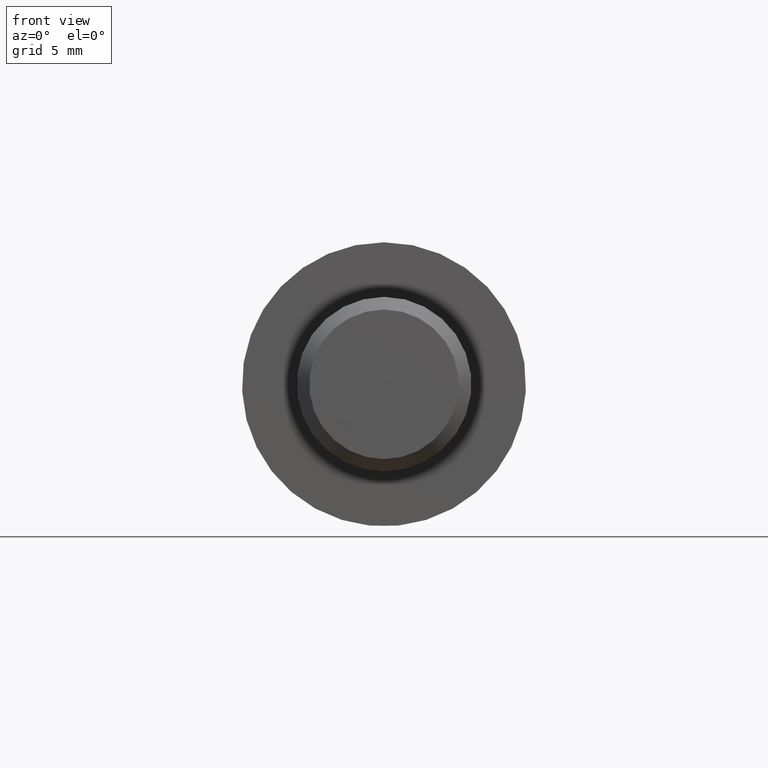
[diagram: clean part render]
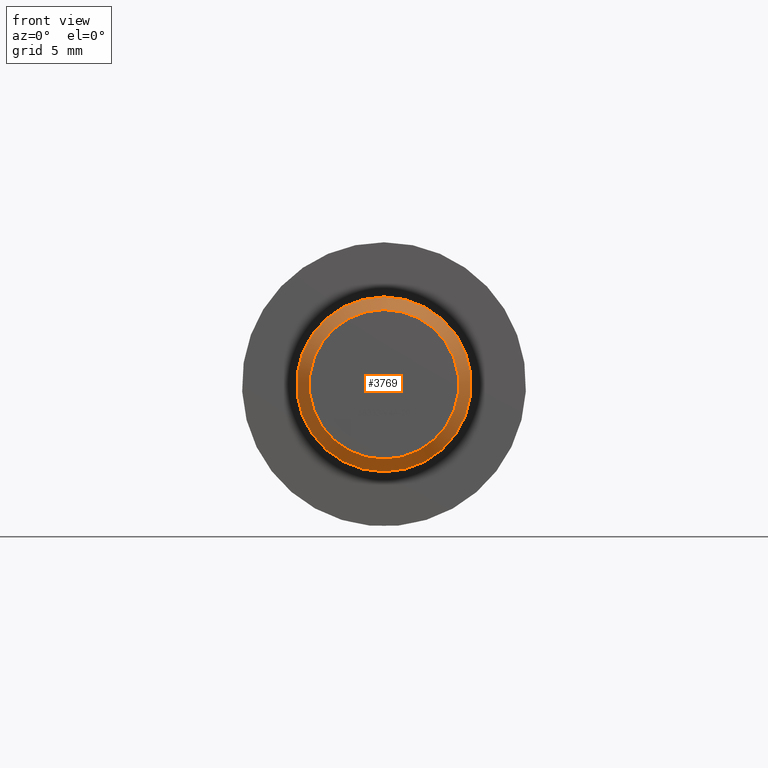
[diagram: same view with one face highlighted and labeled with its STEP entity id]
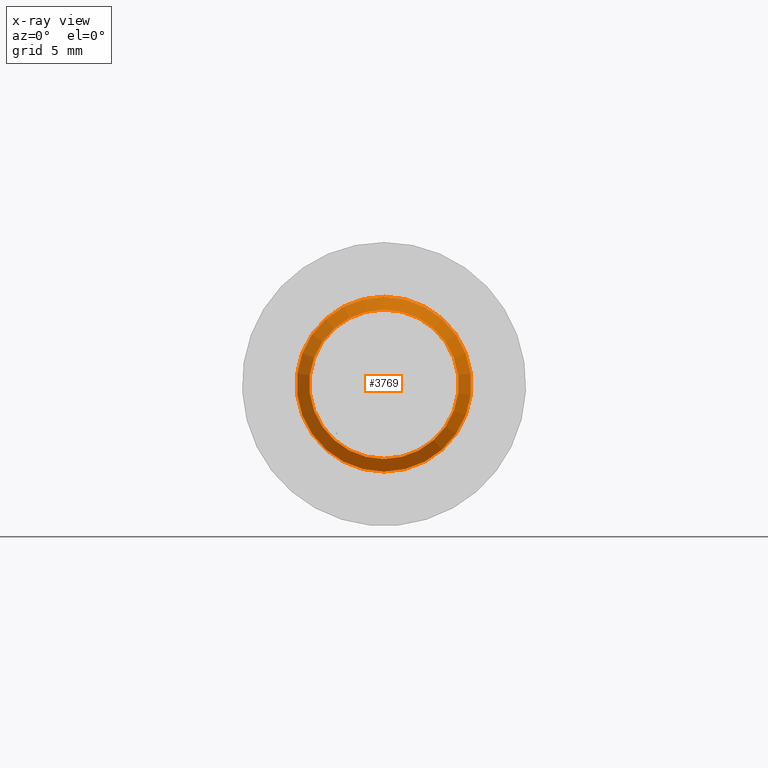
[diagram: x-ray of the same camera — body ghosted, the highlighted face saturated]
A machine part, front view. The second image highlights one B-rep face of the part: STEP entity #3769.
The next image is the same camera in x-ray: the body ghosted, the highlighted face saturated — about 0% of this face is hidden behind the body in this view.
In plain terms, the highlighted conical surface has half-angle 30 deg.
Its self-contained STEP definition (entity closure, byte-faithful):
#101 = FACE_BOUND ( 'NONE', #9966, .T. ) ;
#1142 = ORIENTED_EDGE ( 'NONE', *, *, #8881, .F. ) ;
#2593 = DIRECTION ( 'NONE',  ( 0.0000000000000000000, 0.0000000000000000000, -1.000000000000000000 ) ) ;
#3044 = VERTEX_POINT ( 'NONE', #8148 ) ;
#3125 = CIRCLE ( 'NONE', #3530, 3.422649730810373800 ) ;
#3530 = AXIS2_PLACEMENT_3D ( 'NONE', #5613, #11767, #7981 ) ;
#3591 = EDGE_LOOP ( 'NONE', ( #1142 ) ) ;
#3609 = AXIS2_PLACEMENT_3D ( 'NONE', #7294, #4977, #13612 ) ;
#3769 = ADVANCED_FACE ( 'NONE', ( #15611, #101 ), #7883, .T. ) ;
#3858 = AXIS2_PLACEMENT_3D ( 'NONE', #14947, #3965, #2593 ) ;
#3965 = DIRECTION ( 'NONE',  ( 0.0000000000000000000, 1.000000000000000000, 0.0000000000000000000 ) ) ;
#4456 = CARTESIAN_POINT ( 'NONE',  ( 0.0000000000000000000, -20.00000000000000000, -3.422649730810373800 ) ) ;
#4977 = DIRECTION ( 'NONE',  ( 0.0000000000000000000, 1.000000000000000000, 0.0000000000000000000 ) ) ;
#5613 = CARTESIAN_POINT ( 'NONE',  ( 0.0000000000000000000, -20.00000000000000000, 0.0000000000000000000 ) ) ;
#7294 = CARTESIAN_POINT ( 'NONE',  ( 0.0000000000000000000, -20.00000000000000000, 0.0000000000000000000 ) ) ;
#7883 = CONICAL_SURFACE ( 'NONE', #3609, 3.422649730810373800, 0.5235987755982972600 ) ;
#7981 = DIRECTION ( 'NONE',  ( 0.0000000000000000000, 0.0000000000000000000, -1.000000000000000000 ) ) ;
#8148 = CARTESIAN_POINT ( 'NONE',  ( 0.0000000000000000000, -18.99999999999999600, -4.000000000000000000 ) ) ;
#8881 = EDGE_CURVE ( 'NONE', #3044, #3044, #15550, .T. ) ;
#9966 = EDGE_LOOP ( 'NONE', ( #12359 ) ) ;
#11122 = EDGE_CURVE ( 'NONE', #14459, #14459, #3125, .T. ) ;
#11767 = DIRECTION ( 'NONE',  ( 0.0000000000000000000, -1.000000000000000000, 0.0000000000000000000 ) ) ;
#12359 = ORIENTED_EDGE ( 'NONE', *, *, #11122, .F. ) ;
#13612 = DIRECTION ( 'NONE',  ( 0.0000000000000000000, 0.0000000000000000000, 1.000000000000000000 ) ) ;
#14459 = VERTEX_POINT ( 'NONE', #4456 ) ;
#14947 = CARTESIAN_POINT ( 'NONE',  ( 0.0000000000000000000, -18.99999999999999600, 0.0000000000000000000 ) ) ;
#15550 = CIRCLE ( 'NONE', #3858, 4.000000000000000000 ) ;
#15611 = FACE_OUTER_BOUND ( 'NONE', #3591, .T. ) ;